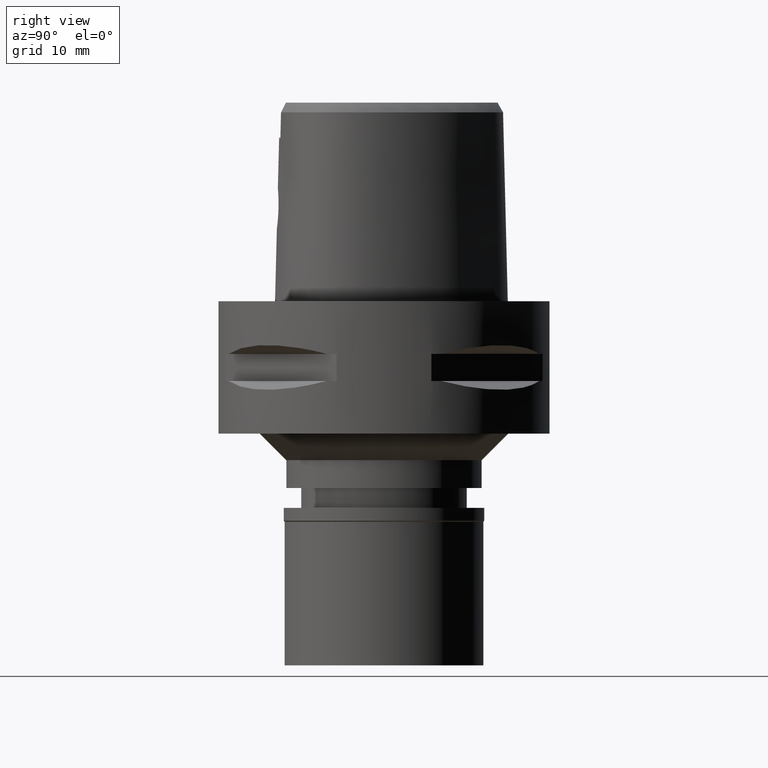
[diagram: clean part render]
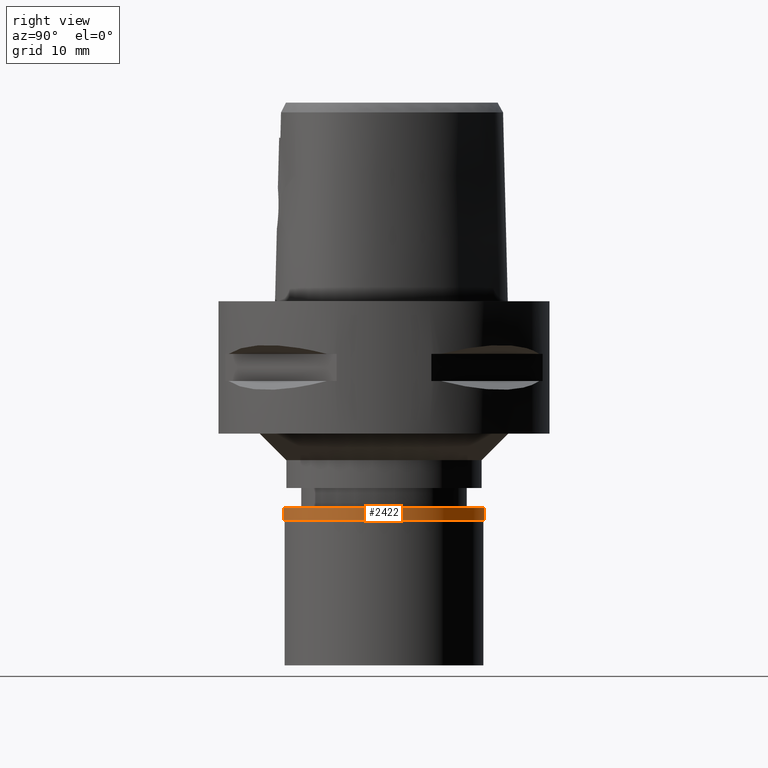
[diagram: same view with one face highlighted and labeled with its STEP entity id]
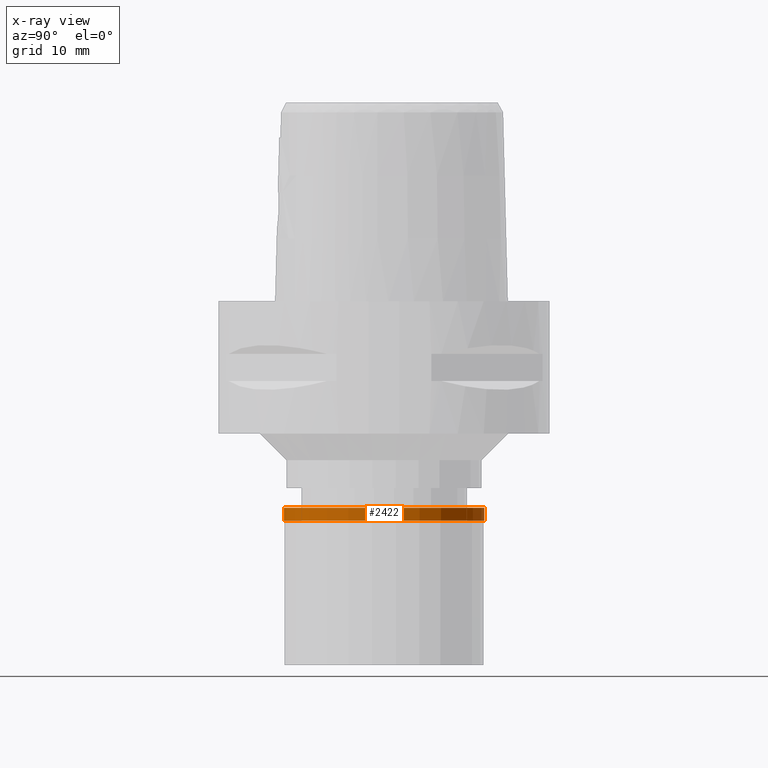
[diagram: x-ray of the same camera — body ghosted, the highlighted face saturated]
A machine part, right view. The second image highlights one B-rep face of the part: STEP entity #2422.
The next image is the same camera in x-ray: the body ghosted, the highlighted face saturated — about 0% of this face is hidden behind the body in this view.
In plain terms, the highlighted cylindrical surface (partial cylindrical patch) has radius 15.15 mm, axis along (0, 0, -1).
Its self-contained STEP definition (entity closure, byte-faithful):
#259 = AXIS2_PLACEMENT_3D ( 'NONE', #3761, #432, #1901 ) ;
#365 = AXIS2_PLACEMENT_3D ( 'NONE', #4221, #1612, #2242 ) ;
#432 = DIRECTION ( 'NONE',  ( 0.0000000000000000000, 0.0000000000000000000, 1.000000000000000000 ) ) ;
#647 = AXIS2_PLACEMENT_3D ( 'NONE', #4792, #1146, #3278 ) ;
#688 = LINE ( 'NONE', #2553, #2896 ) ;
#745 = ORIENTED_EDGE ( 'NONE', *, *, #3806, .T. ) ;
#986 = VERTEX_POINT ( 'NONE', #4352 ) ;
#1146 = DIRECTION ( 'NONE',  ( 0.0000000000000000000, 0.0000000000000000000, -1.000000000000000000 ) ) ;
#1187 = CIRCLE ( 'NONE', #259, 15.15000000000000036 ) ;
#1211 = FACE_OUTER_BOUND ( 'NONE', #2093, .T. ) ;
#1612 = DIRECTION ( 'NONE',  ( 0.0000000000000000000, 0.0000000000000000000, -1.000000000000000000 ) ) ;
#1689 = VERTEX_POINT ( 'NONE', #3393 ) ;
#1804 = VECTOR ( 'NONE', #4135, 1000.000000000000000 ) ;
#1901 = DIRECTION ( 'NONE',  ( 0.0000000000000000000, -1.000000000000000000, 0.0000000000000000000 ) ) ;
#2093 = EDGE_LOOP ( 'NONE', ( #745, #4430, #2960, #3705 ) ) ;
#2242 = DIRECTION ( 'NONE',  ( 0.0000000000000000000, -1.000000000000000000, 0.0000000000000000000 ) ) ;
#2422 = ADVANCED_FACE ( 'NONE', ( #1211 ), #3459, .T. ) ;
#2553 = CARTESIAN_POINT ( 'NONE',  ( 0.0000000000000000000, 15.15000000000000036, 0.0000000000000000000 ) ) ;
#2896 = VECTOR ( 'NONE', #4043, 1000.000000000000000 ) ;
#2960 = ORIENTED_EDGE ( 'NONE', *, *, #3935, .T. ) ;
#3100 = LINE ( 'NONE', #4582, #1804 ) ;
#3278 = DIRECTION ( 'NONE',  ( 0.0000000000000000000, 1.000000000000000000, 0.0000000000000000000 ) ) ;
#3314 = CARTESIAN_POINT ( 'NONE',  ( 0.0000000000000000000, -15.15000000000000036, 0.0000000000000000000 ) ) ;
#3393 = CARTESIAN_POINT ( 'NONE',  ( 0.0000000000000000000, -15.15000000000000036, -1.949999999999999956 ) ) ;
#3459 = CYLINDRICAL_SURFACE ( 'NONE', #365, 15.15000000000000036 ) ;
#3541 = CARTESIAN_POINT ( 'NONE',  ( 0.0000000000000000000, 15.15000000000000036, -1.949999999999999956 ) ) ;
#3705 = ORIENTED_EDGE ( 'NONE', *, *, #4088, .F. ) ;
#3761 = CARTESIAN_POINT ( 'NONE',  ( 0.0000000000000000000, 0.0000000000000000000, -1.949999999999999956 ) ) ;
#3806 = EDGE_CURVE ( 'NONE', #986, #4122, #4512, .T. ) ;
#3935 = EDGE_CURVE ( 'NONE', #1689, #4798, #1187, .T. ) ;
#4043 = DIRECTION ( 'NONE',  ( 0.0000000000000000000, 0.0000000000000000000, -1.000000000000000000 ) ) ;
#4088 = EDGE_CURVE ( 'NONE', #986, #4798, #688, .T. ) ;
#4122 = VERTEX_POINT ( 'NONE', #3314 ) ;
#4135 = DIRECTION ( 'NONE',  ( 0.0000000000000000000, 0.0000000000000000000, -1.000000000000000000 ) ) ;
#4221 = CARTESIAN_POINT ( 'NONE',  ( 0.0000000000000000000, 0.0000000000000000000, 0.0000000000000000000 ) ) ;
#4352 = CARTESIAN_POINT ( 'NONE',  ( 0.0000000000000000000, 15.15000000000000036, 0.0000000000000000000 ) ) ;
#4430 = ORIENTED_EDGE ( 'NONE', *, *, #4668, .T. ) ;
#4512 = CIRCLE ( 'NONE', #647, 15.15000000000000036 ) ;
#4582 = CARTESIAN_POINT ( 'NONE',  ( 0.0000000000000000000, -15.15000000000000036, 0.0000000000000000000 ) ) ;
#4668 = EDGE_CURVE ( 'NONE', #4122, #1689, #3100, .T. ) ;
#4792 = CARTESIAN_POINT ( 'NONE',  ( 0.0000000000000000000, 0.0000000000000000000, 0.0000000000000000000 ) ) ;
#4798 = VERTEX_POINT ( 'NONE', #3541 ) ;